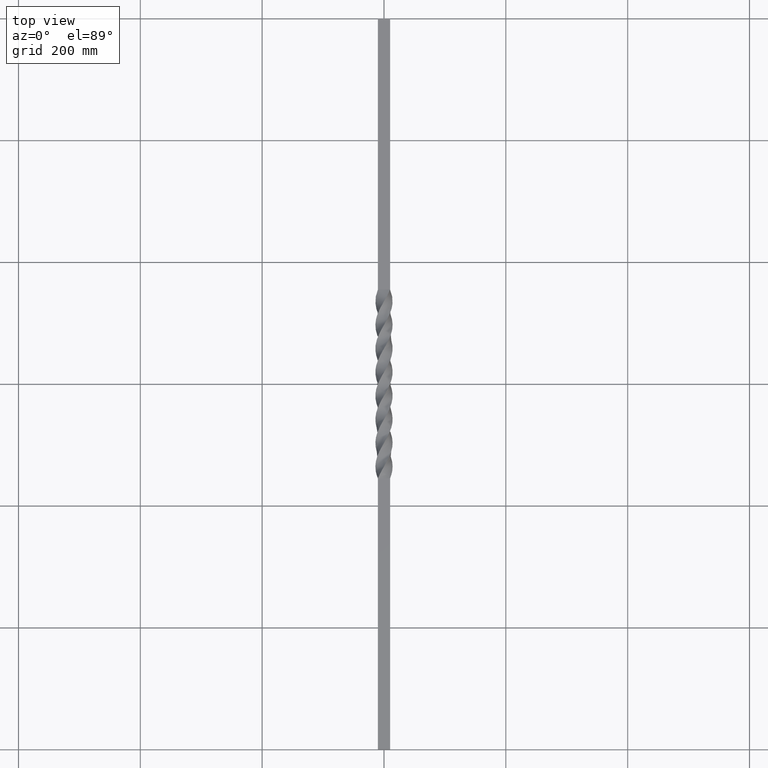
[diagram: clean part render]
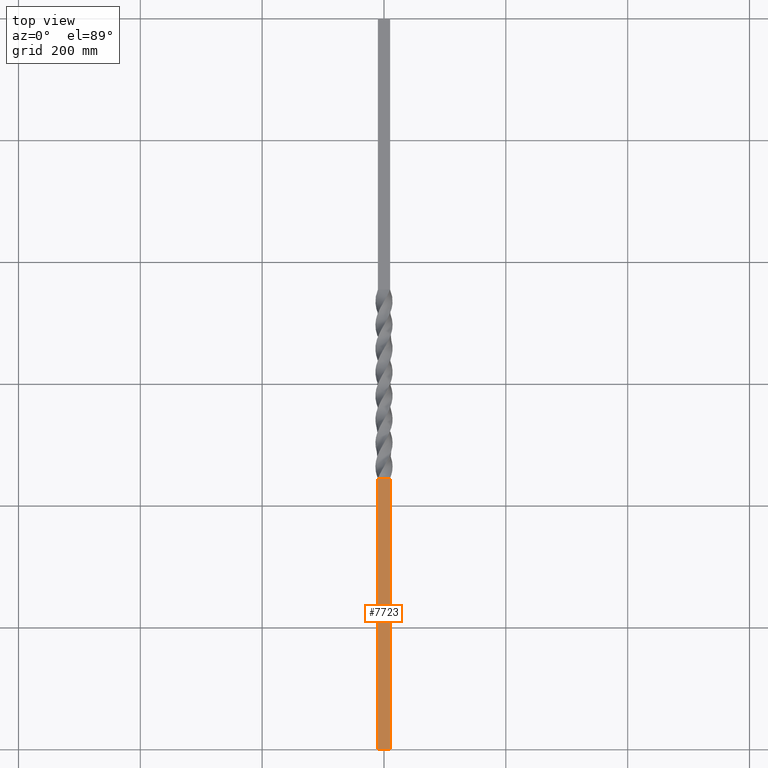
[diagram: same view with one face highlighted and labeled with its STEP entity id]
A machine part, top view. The second image highlights one B-rep face of the part: STEP entity #7723.
In plain terms, the highlighted planar face has unit normal (0, 0, -1).
Its self-contained STEP definition (entity closure, byte-faithful):
#364 = CARTESIAN_POINT ( 'NONE',  ( -9.999999999999998224, 0.000000000000000000, 9.999999833333335530 ) ) ;
#677 = PLANE ( 'NONE',  #2118 ) ;
#694 = CARTESIAN_POINT ( 'NONE',  ( 10.00000000000000355, 148.3333333333333428, 10.00000000000000178 ) ) ;
#898 = VERTEX_POINT ( 'NONE', #8452 ) ;
#1160 = DIRECTION ( 'NONE',  ( 1.000000000000000000, -0.000000000000000000, 0.000000000000000000 ) ) ;
#1636 = CARTESIAN_POINT ( 'NONE',  ( -9.999999970839343888, 445.0000000717486728, 10.00000002643431429 ) ) ;
#2053 = ORIENTED_EDGE ( 'NONE', *, *, #4114, .T. ) ;
#2080 = CARTESIAN_POINT ( 'NONE',  ( 9.999999833333335530, 0.000000000000000000, 10.00000000000000178 ) ) ;
#2118 = AXIS2_PLACEMENT_3D ( 'NONE', #8473, #7751, #5741 ) ;
#2206 = ORIENTED_EDGE ( 'NONE', *, *, #4170, .T. ) ;
#2210 = VERTEX_POINT ( 'NONE', #364 ) ;
#2231 = B_SPLINE_CURVE_WITH_KNOTS ( 'NONE', 3,
 ( #7173, #6479, #2316, #3021 ),
 .UNSPECIFIED., .F., .F.,
 ( 4, 4 ),
 ( 0.000000000000000000, 0.9999999749999999299 ),
 .UNSPECIFIED. ) ;
#2316 = CARTESIAN_POINT ( 'NONE',  ( 3.333333333333336590, 0.000000000000000000, 10.00000000000000178 ) ) ;
#2964 = CARTESIAN_POINT ( 'NONE',  ( -9.999999999999998224, 296.6666666666666856, 10.00000000000000178 ) ) ;
#2998 = B_SPLINE_CURVE_WITH_KNOTS ( 'NONE', 3,
 ( #4260, #4956, #694, #5565 ),
 .UNSPECIFIED., .F., .F.,
 ( 4, 4 ),
 ( 0.000000000000000000, 1.000000000000000000 ),
 .UNSPECIFIED. ) ;
#3021 = CARTESIAN_POINT ( 'NONE',  ( 9.999999833333335530, 0.000000000000000000, 10.00000000000000178 ) ) ;
#3076 = EDGE_CURVE ( 'NONE', #5718, #898, #5984, .T. ) ;
#3622 = EDGE_CURVE ( 'NONE', #898, #6294, #2998, .T. ) ;
#3991 = FACE_OUTER_BOUND ( 'NONE', #6443, .T. ) ;
#4114 = EDGE_CURVE ( 'NONE', #2210, #6294, #2231, .T. ) ;
#4170 = EDGE_CURVE ( 'NONE', #5718, #2210, #4290, .T. ) ;
#4241 = VECTOR ( 'NONE', #1160, 1000.000000000000000 ) ;
#4260 = CARTESIAN_POINT ( 'NONE',  ( 10.00000002643306907, 445.0000000717489002, 9.999999970839224872 ) ) ;
#4290 = B_SPLINE_CURVE_WITH_KNOTS ( 'NONE', 3,
 ( #1636, #2964, #7146, #8617 ),
 .UNSPECIFIED., .F., .F.,
 ( 4, 4 ),
 ( 0.000000000000000000, 1.000000000000000000 ),
 .UNSPECIFIED. ) ;
#4956 = CARTESIAN_POINT ( 'NONE',  ( 10.00000000000000355, 296.6666666666666856, 10.00000000000000178 ) ) ;
#5265 = CARTESIAN_POINT ( 'NONE',  ( -9.999999970839343888, 445.0000000717486728, 10.00000002643431429 ) ) ;
#5565 = CARTESIAN_POINT ( 'NONE',  ( 9.999999833333335530, 0.000000000000000000, 10.00000000000000178 ) ) ;
#5718 = VERTEX_POINT ( 'NONE', #5265 ) ;
#5741 = DIRECTION ( 'NONE',  ( -1.000000000000000000, 0.000000000000000000, -0.000000000000000000 ) ) ;
#5984 = LINE ( 'NONE', #6052, #4241 ) ;
#6052 = CARTESIAN_POINT ( 'NONE',  ( -9.999999999999998224, 445.0000000000000568, 10.00000000000000178 ) ) ;
#6294 = VERTEX_POINT ( 'NONE', #2080 ) ;
#6443 = EDGE_LOOP ( 'NONE', ( #2053, #7774, #7653, #2206 ) ) ;
#6479 = CARTESIAN_POINT ( 'NONE',  ( -3.333333333333330817, 0.000000000000000000, 10.00000000000000178 ) ) ;
#7146 = CARTESIAN_POINT ( 'NONE',  ( -9.999999999999998224, 148.3333333333333428, 10.00000000000000178 ) ) ;
#7173 = CARTESIAN_POINT ( 'NONE',  ( -9.999999999999998224, 0.000000000000000000, 9.999999833333335530 ) ) ;
#7653 = ORIENTED_EDGE ( 'NONE', *, *, #3076, .F. ) ;
#7723 = ADVANCED_FACE ( 'NONE', ( #3991 ), #677, .F. ) ;
#7751 = DIRECTION ( 'NONE',  ( 0.000000000000000000, 0.000000000000000000, -1.000000000000000000 ) ) ;
#7774 = ORIENTED_EDGE ( 'NONE', *, *, #3622, .F. ) ;
#8452 = CARTESIAN_POINT ( 'NONE',  ( 10.00000002643306907, 445.0000000717489002, 9.999999970839224872 ) ) ;
#8473 = CARTESIAN_POINT ( 'NONE',  ( -9.999999999999998224, 1200.000000000000000, 10.00000000000000178 ) ) ;
#8617 = CARTESIAN_POINT ( 'NONE',  ( -9.999999999999998224, 0.000000000000000000, 9.999999833333335530 ) ) ;